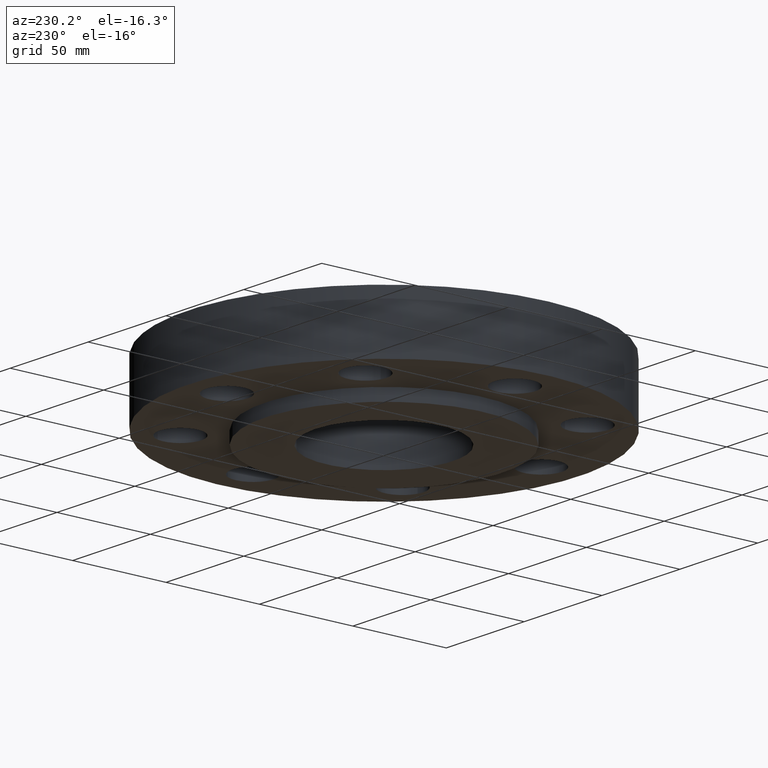
[diagram: clean part render]
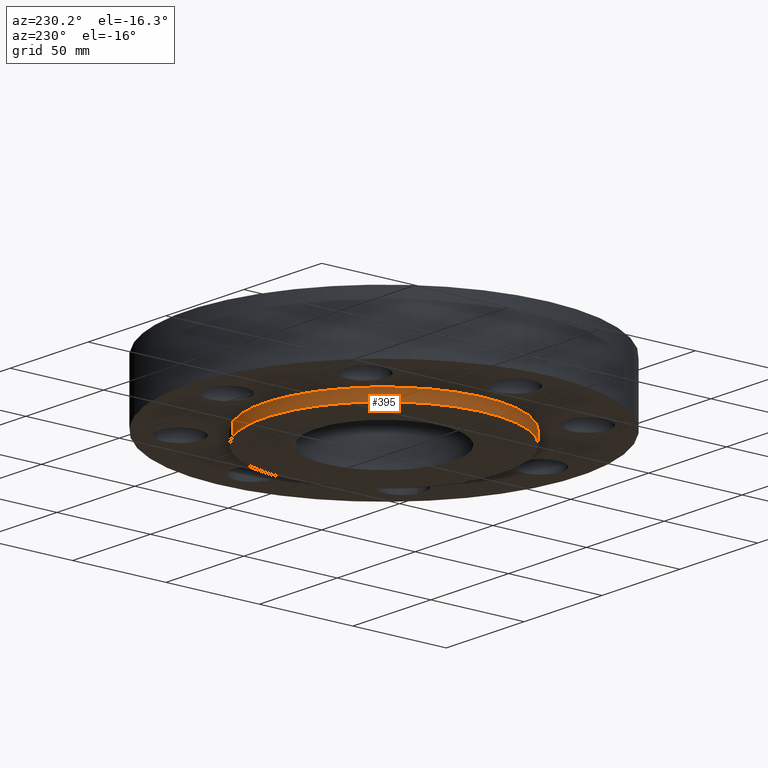
[diagram: same view with one face highlighted and labeled with its STEP entity id]
A machine part, auxiliary view. The second image highlights one B-rep face of the part: STEP entity #395.
In plain terms, the highlighted cylindrical surface (partial cylindrical patch) has radius 63.5 mm, axis along (0, 0, -1).
Its self-contained STEP definition (entity closure, byte-faithful):
#275=AXIS2_PLACEMENT_3D('Circle Axis2P3D',#273,#274,$) ;
#368=AXIS2_PLACEMENT_3D('Cylinder Axis2P3D',#365,#366,#367) ;
#379=AXIS2_PLACEMENT_3D('Circle Axis2P3D',#377,#378,$) ;
#273=CARTESIAN_POINT('Axis2P3D Location',(0.,7.06682306723E-012,-0.250000000001)) ;
#277=CARTESIAN_POINT('Vertex',(-1.19856384649,-2.19395640474,-0.250000000001)) ;
#279=CARTESIAN_POINT('Vertex',(1.19856384649,2.19395640476,-0.250000000001)) ;
#365=CARTESIAN_POINT('Axis2P3D Location',(0.,0.,0.780000000003)) ;
#370=CARTESIAN_POINT('Line Origine',(-1.19856384652,-2.19395640473,-0.125000000023)) ;
#374=CARTESIAN_POINT('Vertex',(-1.19856384652,-2.19395640473,-3.04399025671E-011)) ;
#377=CARTESIAN_POINT('Axis2P3D Location',(0.,0.,-3.04399025671E-011)) ;
#381=CARTESIAN_POINT('Vertex',(1.19856384652,2.19395640473,-3.04399025671E-011)) ;
#384=CARTESIAN_POINT('Line Origine',(1.19856384652,2.19395640473,-0.125000000023)) ;
#274=DIRECTION('Axis2P3D Direction',(0.,0.,-0.0393700787402)) ;
#366=DIRECTION('Axis2P3D Direction',(0.,0.,-0.0393700787402)) ;
#367=DIRECTION('Axis2P3D XDirection',(-0.0188750212049,-0.0345504945626,0.)) ;
#371=DIRECTION('Vector Direction',(0.,0.,-0.0393700787402)) ;
#378=DIRECTION('Axis2P3D Direction',(0.,0.,-0.0393700787402)) ;
#385=DIRECTION('Vector Direction',(0.,0.,-0.0393700787402)) ;
#372=VECTOR('Line Direction',#371,0.0393700787402) ;
#386=VECTOR('Line Direction',#385,0.0393700787402) ;
#390=ORIENTED_EDGE('',*,*,#281,.F.) ;
#391=ORIENTED_EDGE('',*,*,#376,.T.) ;
#392=ORIENTED_EDGE('',*,*,#383,.T.) ;
#393=ORIENTED_EDGE('',*,*,#388,.F.) ;
#395=ADVANCED_FACE('PartBody',(#394),#369,.T.) ;
#276=CIRCLE('generated circle',#275,2.50000000001) ;
#380=CIRCLE('generated circle',#379,2.50000000001) ;
#369=CYLINDRICAL_SURFACE('generated cylinder',#368,2.50000000001) ;
#281=EDGE_CURVE('',#278,#280,#276,.T.) ;
#376=EDGE_CURVE('',#278,#375,#373,.F.) ;
#383=EDGE_CURVE('',#375,#382,#380,.T.) ;
#388=EDGE_CURVE('',#280,#382,#387,.F.) ;
#389=EDGE_LOOP('',(#390,#391,#392,#393)) ;
#394=FACE_OUTER_BOUND('',#389,.T.) ;
#373=LINE('Line',#370,#372) ;
#387=LINE('Line',#384,#386) ;
#278=VERTEX_POINT('',#277) ;
#280=VERTEX_POINT('',#279) ;
#375=VERTEX_POINT('',#374) ;
#382=VERTEX_POINT('',#381) ;